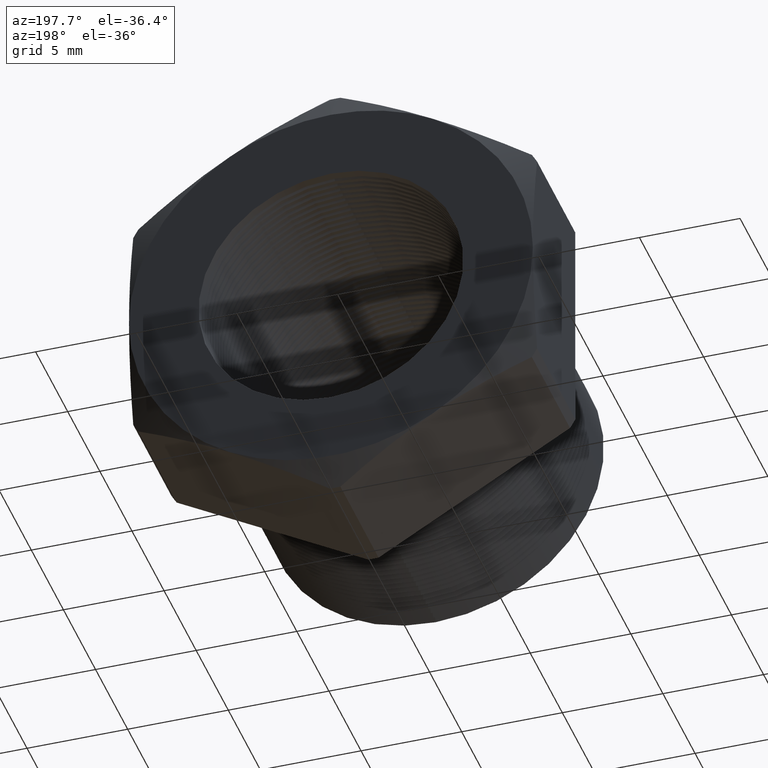
[diagram: clean part render]
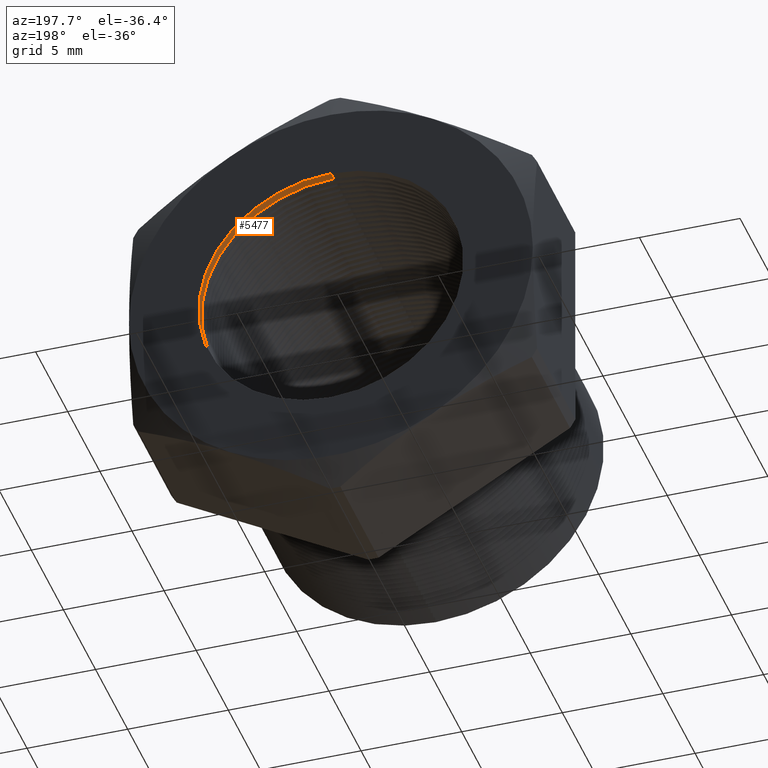
[diagram: same view with one face highlighted and labeled with its STEP entity id]
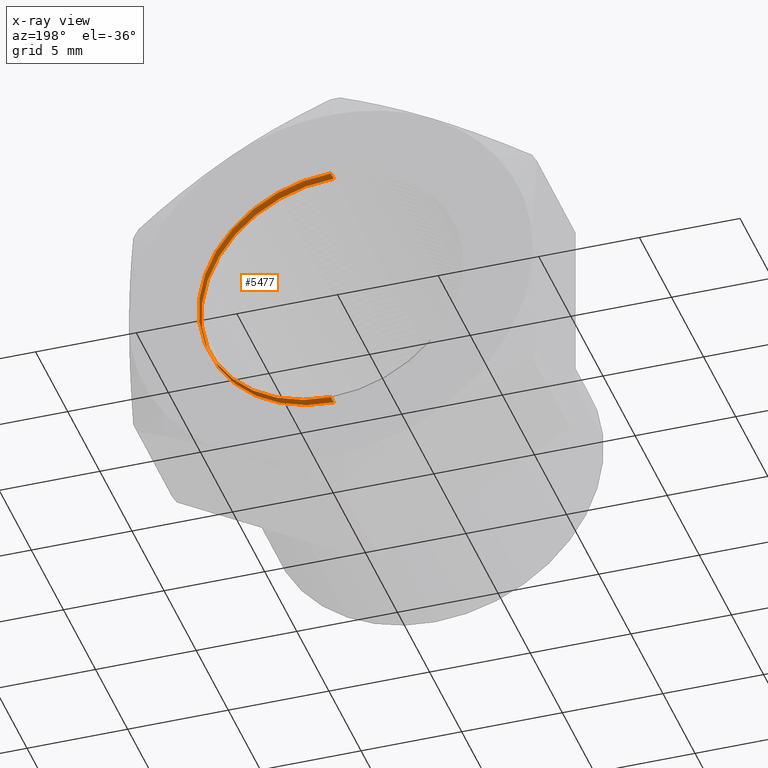
[diagram: x-ray of the same camera — body ghosted, the highlighted face saturated]
A machine part, auxiliary view. The second image highlights one B-rep face of the part: STEP entity #5477.
The next image is the same camera in x-ray: the body ghosted, the highlighted face saturated — about 0% of this face is hidden behind the body in this view.
In plain terms, the highlighted cylindrical surface (partial cylindrical patch) has radius 6.5783 mm, axis along (-0, -1, -0).
Its self-contained STEP definition (entity closure, byte-faithful):
#381 = DIRECTION ( 'NONE',  ( 0.0000000000000000000, 0.0000000000000000000, -1.000000000000000000 ) ) ;
#382 = DIRECTION ( 'NONE',  ( -0.0000000000000000000, -1.000000000000000000, -0.0000000000000000000 ) ) ;
#383 = CARTESIAN_POINT ( 'NONE',  ( 0.0000000000000000000, 0.0000000000000000000, 0.0000000000000000000 ) ) ;
#384 = AXIS2_PLACEMENT_3D ( 'NONE', #383, #382, #381 ) ;
#386 = CYLINDRICAL_SURFACE ( 'NONE', #384, 0.2589880461203001900 ) ;
#390 = FACE_OUTER_BOUND ( 'NONE', #5474, .T. ) ;
#395 = DIRECTION ( 'NONE',  ( 0.0000000000000000000, 0.0000000000000000000, -1.000000000000000000 ) ) ;
#396 = DIRECTION ( 'NONE',  ( -0.0000000000000000000, 1.000000000000000000, -0.0000000000000000000 ) ) ;
#397 = CARTESIAN_POINT ( 'NONE',  ( 0.0000000000000000000, 0.3903219653570460000, 0.0000000000000000000 ) ) ;
#398 = AXIS2_PLACEMENT_3D ( 'NONE', #397, #396, #395 ) ;
#399 = CIRCLE ( 'NONE', #398, 0.2589880461203001900 ) ;
#2137 = DIRECTION ( 'NONE',  ( 0.0000000000000000000, 0.0000000000000000000, -1.000000000000000000 ) ) ;
#2138 = DIRECTION ( 'NONE',  ( -0.0000000000000000000, -1.000000000000000000, -0.0000000000000000000 ) ) ;
#2139 = CARTESIAN_POINT ( 'NONE',  ( 0.0000000000000000000, 0.4075548905829479200, 0.0000000000000000000 ) ) ;
#2140 = AXIS2_PLACEMENT_3D ( 'NONE', #2139, #2138, #2137 ) ;
#2144 = CIRCLE ( 'NONE', #2140, 0.2589880461203001900 ) ;
#2857 = CARTESIAN_POINT ( 'NONE',  ( 3.171688816986526800E-017, 0.3903219653570460000, 0.2589880461203001900 ) ) ;
#2874 = CARTESIAN_POINT ( 'NONE',  ( 0.0000000000000000000, 0.3903219653570460000, -0.2589880461203001900 ) ) ;
#2915 = CARTESIAN_POINT ( 'NONE',  ( 3.171688816986526800E-017, 0.4075548905829479200, 0.2589880461203001900 ) ) ;
#2916 = CARTESIAN_POINT ( 'NONE',  ( 0.0000000000000000000, 0.4075548905829479200, -0.2589880461203001900 ) ) ;
#2917 = DIRECTION ( 'NONE',  ( -0.0000000000000000000, -1.000000000000000000, -0.0000000000000000000 ) ) ;
#2918 = VECTOR ( 'NONE', #2917, 39.37007874015748100 ) ;
#2919 = CARTESIAN_POINT ( 'NONE',  ( 3.171688816986526800E-017, 0.0000000000000000000, 0.2589880461203001900 ) ) ;
#2920 = LINE ( 'NONE', #2919, #2918 ) ;
#2927 = DIRECTION ( 'NONE',  ( -0.0000000000000000000, -1.000000000000000000, -0.0000000000000000000 ) ) ;
#2928 = VECTOR ( 'NONE', #2927, 39.37007874015748100 ) ;
#2929 = CARTESIAN_POINT ( 'NONE',  ( 0.0000000000000000000, 0.0000000000000000000, -0.2589880461203001900 ) ) ;
#2930 = LINE ( 'NONE', #2929, #2928 ) ;
#5471 = EDGE_CURVE ( 'NONE', #8029, #8023, #399, .T. ) ;
#5473 = ORIENTED_EDGE ( 'NONE', *, *, #7574, .F. ) ;
#5474 = EDGE_LOOP ( 'NONE', ( #5475, #5473, #5476, #5478 ) ) ;
#5475 = ORIENTED_EDGE ( 'NONE', *, *, #8063, .F. ) ;
#5476 = ORIENTED_EDGE ( 'NONE', *, *, #8059, .T. ) ;
#5477 = ADVANCED_FACE ( 'NONE', ( #390 ), #386, .F. ) ;
#5478 = ORIENTED_EDGE ( 'NONE', *, *, #5471, .F. ) ;
#7574 = EDGE_CURVE ( 'NONE', #8064, #8065, #2144, .T. ) ;
#8023 = VERTEX_POINT ( 'NONE', #2874 ) ;
#8029 = VERTEX_POINT ( 'NONE', #2857 ) ;
#8059 = EDGE_CURVE ( 'NONE', #8064, #8023, #2930, .T. ) ;
#8063 = EDGE_CURVE ( 'NONE', #8065, #8029, #2920, .T. ) ;
#8064 = VERTEX_POINT ( 'NONE', #2916 ) ;
#8065 = VERTEX_POINT ( 'NONE', #2915 ) ;